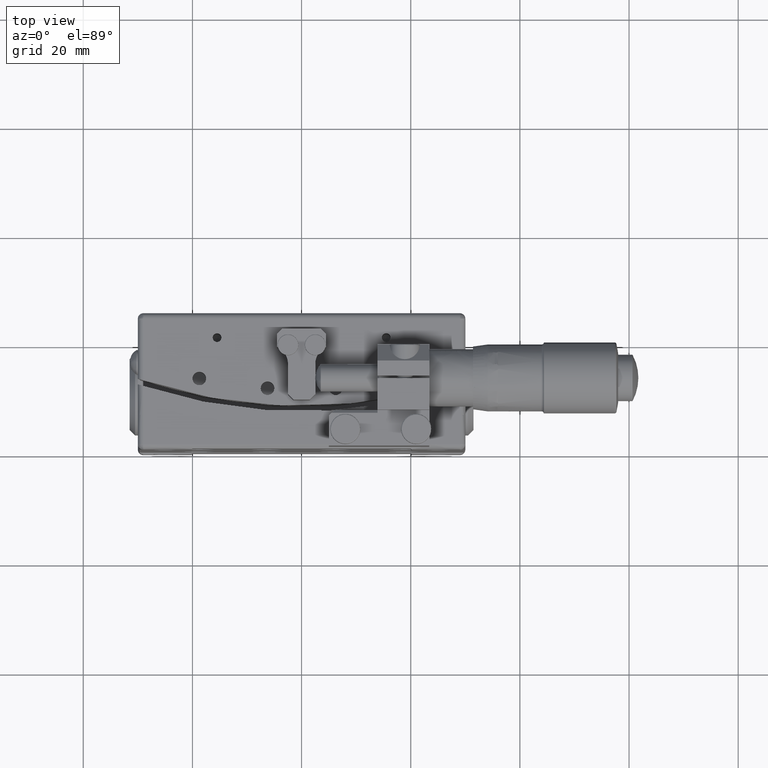
[diagram: clean part render]
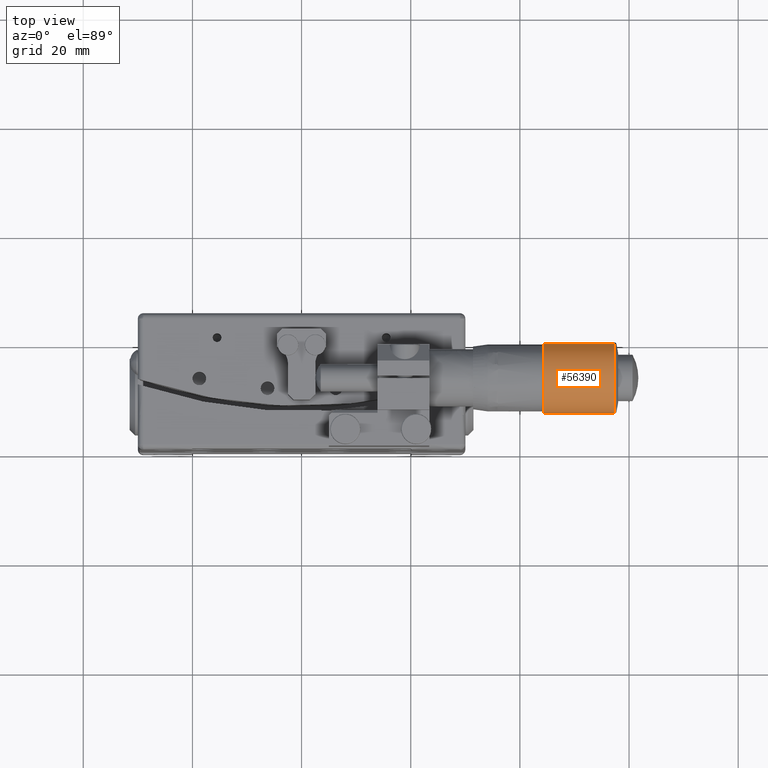
[diagram: same view with one face highlighted and labeled with its STEP entity id]
A machine part, top view. The second image highlights one B-rep face of the part: STEP entity #56390.
In plain terms, the highlighted face is a freeform B-spline surface patch.
Its self-contained STEP definition (entity closure, byte-faithful):
#3966 = VERTEX_POINT ( 'NONE', #46233 ) ;
#4511 = DIRECTION ( 'NONE',  ( 1.000000000000000000, 0.000000000000000000, -0.000000000000000000 ) ) ;
#5111 = EDGE_CURVE ( 'NONE', #46144, #42386, #71036, .T. ) ;
#5255 = VERTEX_POINT ( 'NONE', #59373 ) ;
#5665 = CARTESIAN_POINT ( 'NONE',  ( 57.39561614922992305, -86.99999999999991473, 37.00000000000004263 ) ) ;
#5786 = EDGE_CURVE ( 'NONE', #5255, #42386, #66050, .T. ) ;
#8076 = CIRCLE ( 'NONE', #28043, 6.499999999999992006 ) ;
#8104 = DIRECTION ( 'NONE',  ( 1.000000000000000000, 1.779529883079964195E-15, 8.897649415399820975E-16 ) ) ;
#8251 = CARTESIAN_POINT ( 'NONE',  ( 43.09923838507698690, -80.49999999999994316, 37.00000000000002132 ) ) ;
#8631 = CARTESIAN_POINT ( 'NONE',  ( 43.09923838507698690, -80.49999999999994316, 37.00000000000002132 ) ) ;
#13684 = CARTESIAN_POINT ( 'NONE',  ( 58.69637776415291341, -80.49999999999991473, 30.49999999999999289 ) ) ;
#14313 = CARTESIAN_POINT ( 'NONE',  ( 50.89780807461495726, -80.81813264408147290, 39.00861046343725036 ) ) ;
#14653 = ORIENTED_EDGE ( 'NONE', *, *, #63004, .F. ) ;
#14832 = EDGE_CURVE ( 'NONE', #46144, #3966, #61162, .T. ) ;
#18494 = VECTOR ( 'NONE', #37376, 1000.000000000000000 ) ;
#19499 = CARTESIAN_POINT ( 'NONE',  ( 43.09923838507698690, -93.49999999999994316, 30.50000000000002487 ) ) ;
#20280 = CARTESIAN_POINT ( 'NONE',  ( 58.69637776415292052, -93.49999999999997158, 37.00000000000002132 ) ) ;
#26099 = CARTESIAN_POINT ( 'NONE',  ( 58.69637776415291341, -93.49999999999998579, 30.49999999999999289 ) ) ;
#28043 = AXIS2_PLACEMENT_3D ( 'NONE', #5665, #4511, #75756 ) ;
#29142 =( BOUNDED_SURFACE ( )  B_SPLINE_SURFACE ( 2, 1, ( 
 ( #8251, #38087 ),
 ( #72938, #44277 ),
 ( #38846, #74076 ),
 ( #50100, #61687 ),
 ( #62459, #20280 ),
 ( #19499, #26099 ),
 ( #55141, #32628 ),
 ( #33016, #13684 ),
 ( #8631, #32256 ) ),
 .UNSPECIFIED., .F., .F., .T. ) 
 B_SPLINE_SURFACE_WITH_KNOTS ( ( 3, 2, 2, 2, 3 ),
 ( 2, 2 ),
 ( 0.000000000000000000, 1.570796326794896558, 3.141592653589793116, 4.712388980384689674, 6.283185307179586232 ),
 ( 0.000000000000000000, 15.59713937907592829 ),
 .UNSPECIFIED. ) 
 GEOMETRIC_REPRESENTATION_ITEM ( )  RATIONAL_B_SPLINE_SURFACE ( (
 ( 1.000000000000000000, 1.000000000000000000),
 ( 0.7071067811865475727, 0.7071067811865475727),
 ( 1.000000000000000000, 1.000000000000000000),
 ( 0.7071067811865475727, 0.7071067811865475727),
 ( 1.000000000000000000, 1.000000000000000000),
 ( 0.7071067811865475727, 0.7071067811865475727),
 ( 1.000000000000000000, 1.000000000000000000),
 ( 0.7071067811865475727, 0.7071067811865475727),
 ( 1.000000000000000000, 1.000000000000000000) ) ) 
 REPRESENTATION_ITEM ( '' )  SURFACE ( )  );
#32256 = CARTESIAN_POINT ( 'NONE',  ( 58.69637776415292052, -80.49999999999991473, 37.00000000000002132 ) ) ;
#32628 = CARTESIAN_POINT ( 'NONE',  ( 58.69637776415292052, -86.99999999999994316, 30.49999999999999289 ) ) ;
#32683 = CARTESIAN_POINT ( 'NONE',  ( 44.40000000000000568, -86.99999999999994316, 37.00000000000003553 ) ) ;
#33016 = CARTESIAN_POINT ( 'NONE',  ( 43.09923838507698690, -80.49999999999994316, 30.50000000000002487 ) ) ;
#33068 = DIRECTION ( 'NONE',  ( 0.000000000000000000, 1.000000000000000000, -2.135044278125303709E-15 ) ) ;
#37376 = DIRECTION ( 'NONE',  ( -1.000000000000000000, 8.897649415399820975E-16, -0.000000000000000000 ) ) ;
#38087 = CARTESIAN_POINT ( 'NONE',  ( 58.69637776415292052, -80.49999999999991473, 37.00000000000002132 ) ) ;
#38846 = CARTESIAN_POINT ( 'NONE',  ( 43.09923838507698690, -86.99999999999994316, 43.50000000000002132 ) ) ;
#40125 = AXIS2_PLACEMENT_3D ( 'NONE', #32683, #56342, #33068 ) ;
#42386 = VERTEX_POINT ( 'NONE', #56097 ) ;
#43765 = CARTESIAN_POINT ( 'NONE',  ( 44.40000000000002700, -80.81813264408147290, 39.00861046343725747 ) ) ;
#44277 = CARTESIAN_POINT ( 'NONE',  ( 58.69637776415291341, -80.49999999999991473, 43.50000000000004974 ) ) ;
#46144 = VERTEX_POINT ( 'NONE', #43765 ) ;
#46233 = CARTESIAN_POINT ( 'NONE',  ( 57.39561614922991595, -80.81813264408144448, 39.00861046343724325 ) ) ;
#50100 = CARTESIAN_POINT ( 'NONE',  ( 43.09923838507698690, -93.49999999999994316, 43.50000000000002842 ) ) ;
#50480 = FACE_OUTER_BOUND ( 'NONE', #62740, .T. ) ;
#52575 = ORIENTED_EDGE ( 'NONE', *, *, #5786, .F. ) ;
#54534 = VECTOR ( 'NONE', #8104, 1000.000000000000000 ) ;
#55141 = CARTESIAN_POINT ( 'NONE',  ( 43.09923838507698690, -86.99999999999994316, 30.50000000000002487 ) ) ;
#56097 = CARTESIAN_POINT ( 'NONE',  ( 44.40000000000001990, -93.18186735591824288, 34.99138953656288464 ) ) ;
#56342 = DIRECTION ( 'NONE',  ( 1.000000000000000000, 0.000000000000000000, -0.000000000000000000 ) ) ;
#56390 = ADVANCED_FACE ( 'NONE', ( #50480 ), #29142, .T. ) ;
#59373 = CARTESIAN_POINT ( 'NONE',  ( 57.39561614922991595, -93.18186735591842762, 34.99138953656279227 ) ) ;
#61162 = LINE ( 'NONE', #14313, #54534 ) ;
#61687 = CARTESIAN_POINT ( 'NONE',  ( 58.69637776415291341, -93.49999999999998579, 43.50000000000004974 ) ) ;
#62459 = CARTESIAN_POINT ( 'NONE',  ( 43.09923838507698690, -93.49999999999994316, 37.00000000000002132 ) ) ;
#62740 = EDGE_LOOP ( 'NONE', ( #70362, #65424, #52575, #14653 ) ) ;
#63004 = EDGE_CURVE ( 'NONE', #3966, #5255, #8076, .T. ) ;
#65424 = ORIENTED_EDGE ( 'NONE', *, *, #5111, .T. ) ;
#66050 = LINE ( 'NONE', #71864, #18494 ) ;
#70362 = ORIENTED_EDGE ( 'NONE', *, *, #14832, .F. ) ;
#71036 = CIRCLE ( 'NONE', #40125, 6.499999999999992006 ) ;
#71864 = CARTESIAN_POINT ( 'NONE',  ( 50.89780807461495726, -93.18186735591845604, 34.99138953656282069 ) ) ;
#72938 = CARTESIAN_POINT ( 'NONE',  ( 43.09923838507698690, -80.49999999999994316, 43.50000000000002842 ) ) ;
#74076 = CARTESIAN_POINT ( 'NONE',  ( 58.69637776415292052, -86.99999999999994316, 43.50000000000004974 ) ) ;
#75756 = DIRECTION ( 'NONE',  ( 0.000000000000000000, 0.3090169943749562220, -0.9510565162951507556 ) ) ;